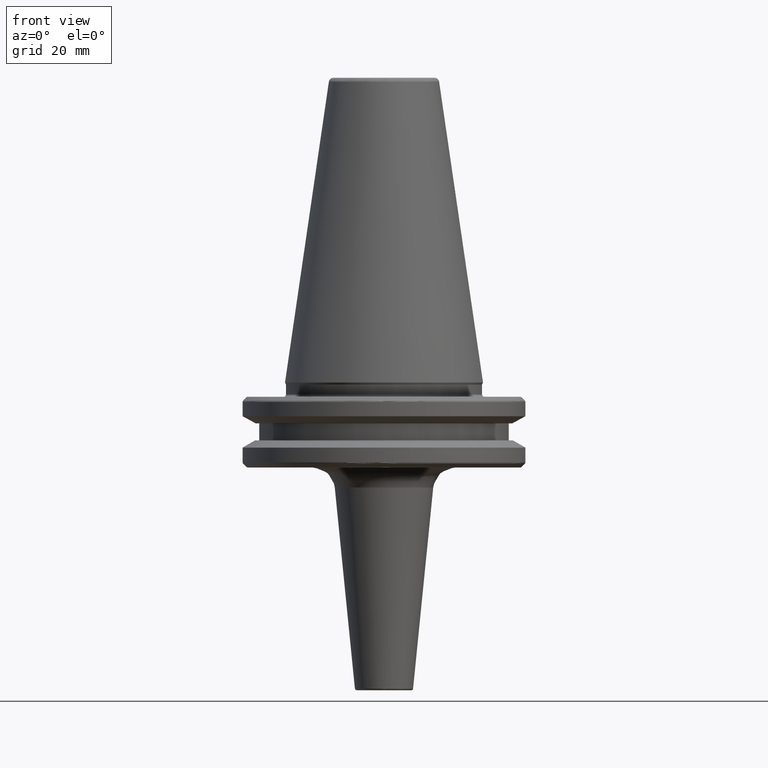
[diagram: clean part render]
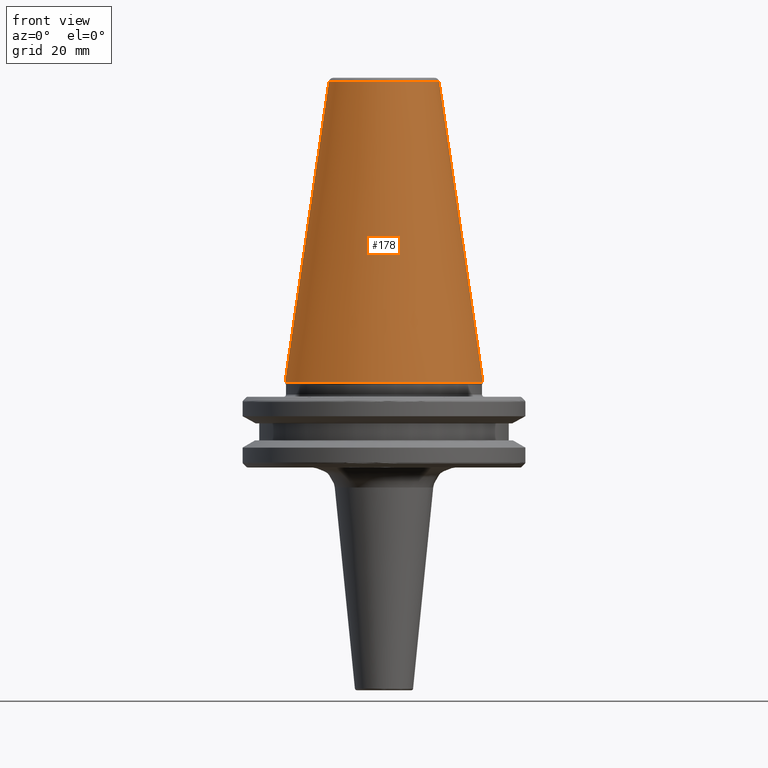
[diagram: same view with one face highlighted and labeled with its STEP entity id]
A machine part, front view. The second image highlights one B-rep face of the part: STEP entity #178.
In plain terms, the highlighted conical surface has half-angle 8.297 deg.
Its self-contained STEP definition (entity closure, byte-faithful):
#61 = CARTESIAN_POINT ( 'NONE',  ( 22.22500000000000500, 0.0000000000000000000, 0.0000000000000000000 ) ) ;
#127 = CIRCLE ( 'NONE', #2536, 12.37469537611110800 ) ;
#146 = DIRECTION ( 'NONE',  ( -0.0000000000000000000, -0.0000000000000000000, 1.000000000000000000 ) ) ;
#147 = EDGE_LOOP ( 'NONE', ( #2210, #1006, #439, #2442 ) ) ;
#178 = ADVANCED_FACE ( 'NONE', ( #1828 ), #612, .T. ) ;
#266 = EDGE_CURVE ( 'NONE', #2598, #1013, #1277, .T. ) ;
#398 = VERTEX_POINT ( 'NONE', #1950 ) ;
#439 = ORIENTED_EDGE ( 'NONE', *, *, #668, .T. ) ;
#502 = AXIS2_PLACEMENT_3D ( 'NONE', #1459, #1332, #1744 ) ;
#612 = CONICAL_SURFACE ( 'NONE', #502, 22.22500000000000100, 0.1448138465474190500 ) ;
#629 = CARTESIAN_POINT ( 'NONE',  ( -22.22500000000000100, 0.0000000000000000000, 0.0000000000000000000 ) ) ;
#668 = EDGE_CURVE ( 'NONE', #398, #2956, #803, .T. ) ;
#692 = CARTESIAN_POINT ( 'NONE',  ( 22.22500000000000100, 2.721777511104992800E-015, 0.0000000000000000000 ) ) ;
#803 = LINE ( 'NONE', #629, #2384 ) ;
#1006 = ORIENTED_EDGE ( 'NONE', *, *, #1032, .T. ) ;
#1013 = VERTEX_POINT ( 'NONE', #61 ) ;
#1032 = EDGE_CURVE ( 'NONE', #2598, #398, #127, .T. ) ;
#1227 = DIRECTION ( 'NONE',  ( 0.0000000000000000000, 0.0000000000000000000, -1.000000000000000000 ) ) ;
#1261 = DIRECTION ( 'NONE',  ( 0.1443082272673070500, 1.767266086135363700E-017, -0.9895327864921743500 ) ) ;
#1264 = CARTESIAN_POINT ( 'NONE',  ( 12.37469537611110800, 2.118620309691396900E-015, 67.54430822726729400 ) ) ;
#1277 = LINE ( 'NONE', #692, #2064 ) ;
#1332 = DIRECTION ( 'NONE',  ( 0.0000000000000000000, 0.0000000000000000000, -1.000000000000000000 ) ) ;
#1459 = CARTESIAN_POINT ( 'NONE',  ( 0.0000000000000000000, 0.0000000000000000000, 0.0000000000000000000 ) ) ;
#1646 = CIRCLE ( 'NONE', #2411, 22.22500000000000100 ) ;
#1680 = CARTESIAN_POINT ( 'NONE',  ( 0.0000000000000000000, 0.0000000000000000000, 0.0000000000000000000 ) ) ;
#1744 = DIRECTION ( 'NONE',  ( -1.000000000000000000, 0.0000000000000000000, 0.0000000000000000000 ) ) ;
#1828 = FACE_OUTER_BOUND ( 'NONE', #147, .T. ) ;
#1865 = DIRECTION ( 'NONE',  ( -0.1443082272673070500, 0.0000000000000000000, -0.9895327864921743500 ) ) ;
#1909 = DIRECTION ( 'NONE',  ( -1.000000000000000000, 0.0000000000000000000, 6.244223985518314900E-016 ) ) ;
#1950 = CARTESIAN_POINT ( 'NONE',  ( -12.37469537611110800, 0.0000000000000000000, 67.54430822726729400 ) ) ;
#1957 = CARTESIAN_POINT ( 'NONE',  ( 0.0000000000000000000, 0.0000000000000000000, 67.54430822726729400 ) ) ;
#2064 = VECTOR ( 'NONE', #1261, 1000.000000000000000 ) ;
#2210 = ORIENTED_EDGE ( 'NONE', *, *, #266, .F. ) ;
#2384 = VECTOR ( 'NONE', #1865, 1000.000000000000000 ) ;
#2411 = AXIS2_PLACEMENT_3D ( 'NONE', #1680, #146, #1909 ) ;
#2442 = ORIENTED_EDGE ( 'NONE', *, *, #2516, .T. ) ;
#2516 = EDGE_CURVE ( 'NONE', #2956, #1013, #1646, .T. ) ;
#2536 = AXIS2_PLACEMENT_3D ( 'NONE', #1957, #1227, #2686 ) ;
#2598 = VERTEX_POINT ( 'NONE', #1264 ) ;
#2686 = DIRECTION ( 'NONE',  ( -1.000000000000000000, 0.0000000000000000000, 0.0000000000000000000 ) ) ;
#2761 = CARTESIAN_POINT ( 'NONE',  ( -22.22500000000000500, 2.721777511104993200E-015, 0.0000000000000000000 ) ) ;
#2956 = VERTEX_POINT ( 'NONE', #2761 ) ;